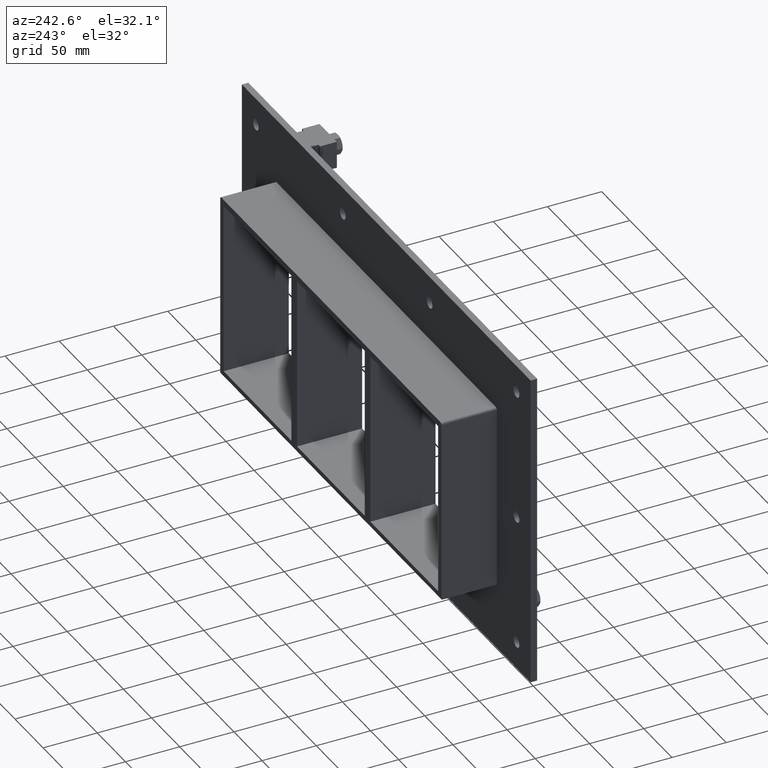
[diagram: clean part render]
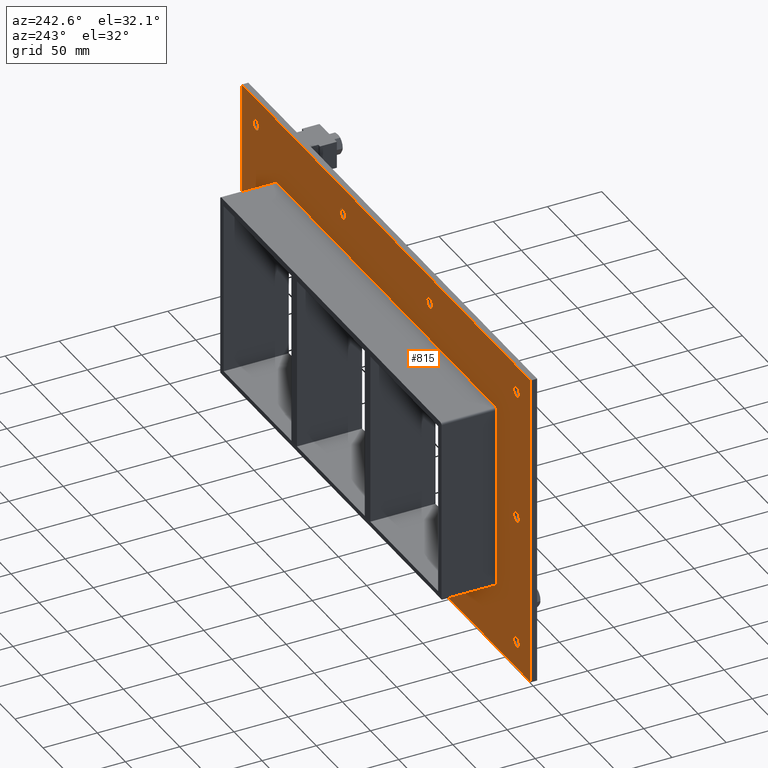
[diagram: same view with one face highlighted and labeled with its STEP entity id]
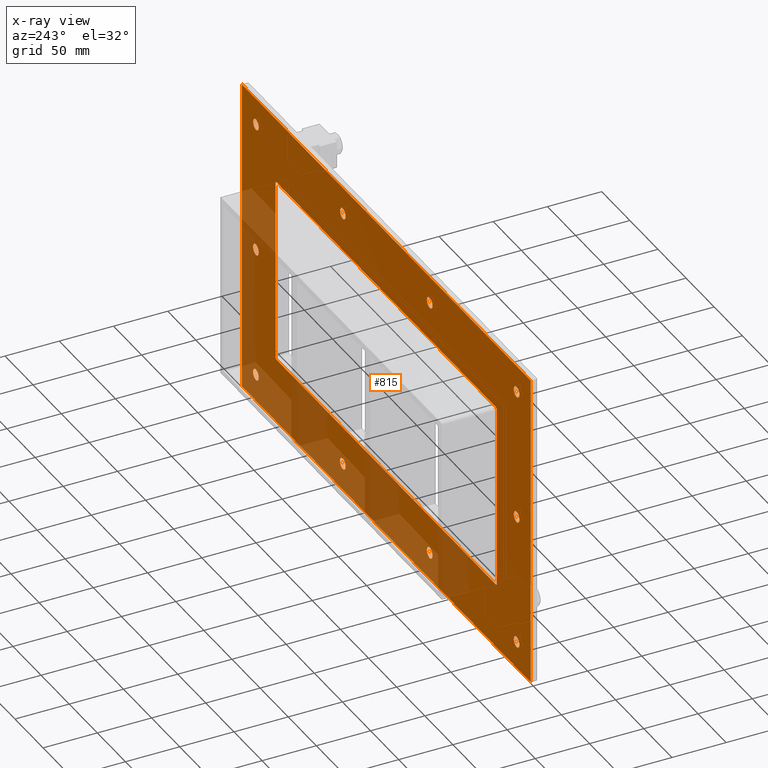
[diagram: x-ray of the same camera — body ghosted, the highlighted face saturated]
A machine part, auxiliary view. The second image highlights one B-rep face of the part: STEP entity #815.
The next image is the same camera in x-ray: the body ghosted, the highlighted face saturated — about 28% of this face is hidden behind the body in this view.
In plain terms, the highlighted planar face has unit normal (0, 1, 0).
Its self-contained STEP definition (entity closure, byte-faithful):
#73=CARTESIAN_POINT('',(-236.75000000000017,6.000000000000014,-120.74999999999996));
#74=VERTEX_POINT('',#73);
#75=CARTESIAN_POINT('',(-231.75000000000017,6.000000000000014,-120.74999999999996));
#76=DIRECTION('',(0.0,-1.0,0.0));
#77=DIRECTION('',(1.0,0.0,0.0));
#78=AXIS2_PLACEMENT_3D('',#75,#76,#77);
#79=CIRCLE('',#78,5.0);
#80=EDGE_CURVE('',#74,#74,#79,.T.);
#101=CARTESIAN_POINT('',(226.74999999999983,6.000000000000014,0.050000000000043));
#102=VERTEX_POINT('',#101);
#103=CARTESIAN_POINT('',(231.74999999999983,6.000000000000014,0.050000000000043));
#104=DIRECTION('',(0.0,-1.0,0.0));
#105=DIRECTION('',(1.0,0.0,0.0));
#106=AXIS2_PLACEMENT_3D('',#103,#104,#105);
#107=CIRCLE('',#106,5.0);
#108=EDGE_CURVE('',#102,#102,#107,.T.);
#129=CARTESIAN_POINT('',(-236.75000000000017,6.000000000000014,0.050000000000043));
#130=VERTEX_POINT('',#129);
#131=CARTESIAN_POINT('',(-231.75000000000017,6.000000000000014,0.050000000000043));
#132=DIRECTION('',(0.0,-1.0,0.0));
#133=DIRECTION('',(1.0,0.0,0.0));
#134=AXIS2_PLACEMENT_3D('',#131,#132,#133);
#135=CIRCLE('',#134,5.0);
#136=EDGE_CURVE('',#130,#130,#135,.T.);
#157=CARTESIAN_POINT('',(-82.250000000000199,6.000000000000014,120.85000000000005));
#158=VERTEX_POINT('',#157);
#159=CARTESIAN_POINT('',(-77.250000000000199,6.000000000000014,120.85000000000005));
#160=DIRECTION('',(0.0,-1.0,0.0));
#161=DIRECTION('',(1.0,0.0,0.0));
#162=AXIS2_PLACEMENT_3D('',#159,#160,#161);
#163=CIRCLE('',#162,5.0);
#164=EDGE_CURVE('',#158,#158,#163,.T.);
#185=CARTESIAN_POINT('',(-82.250000000000199,6.000000000000014,-120.74999999999996));
#186=VERTEX_POINT('',#185);
#187=CARTESIAN_POINT('',(-77.250000000000199,6.000000000000014,-120.74999999999996));
#188=DIRECTION('',(0.0,-1.0,0.0));
#189=DIRECTION('',(1.0,0.0,0.0));
#190=AXIS2_PLACEMENT_3D('',#187,#188,#189);
#191=CIRCLE('',#190,5.0);
#192=EDGE_CURVE('',#186,#186,#191,.T.);
#213=CARTESIAN_POINT('',(72.249999999999815,6.000000000000014,120.85000000000005));
#214=VERTEX_POINT('',#213);
#215=CARTESIAN_POINT('',(77.249999999999815,6.000000000000014,120.85000000000005));
#216=DIRECTION('',(0.0,-1.0,0.0));
#217=DIRECTION('',(1.0,0.0,0.0));
#218=AXIS2_PLACEMENT_3D('',#215,#216,#217);
#219=CIRCLE('',#218,5.0);
#220=EDGE_CURVE('',#214,#214,#219,.T.);
#241=CARTESIAN_POINT('',(72.249999999999815,6.000000000000014,-120.74999999999996));
#242=VERTEX_POINT('',#241);
#243=CARTESIAN_POINT('',(77.249999999999815,6.000000000000014,-120.74999999999996));
#244=DIRECTION('',(0.0,-1.0,0.0));
#245=DIRECTION('',(1.0,0.0,0.0));
#246=AXIS2_PLACEMENT_3D('',#243,#244,#245);
#247=CIRCLE('',#246,5.0);
#248=EDGE_CURVE('',#242,#242,#247,.T.);
#269=CARTESIAN_POINT('',(226.74999999999983,6.000000000000014,-120.74999999999996));
#270=VERTEX_POINT('',#269);
#271=CARTESIAN_POINT('',(231.74999999999983,6.000000000000014,-120.74999999999996));
#272=DIRECTION('',(0.0,-1.0,0.0));
#273=DIRECTION('',(1.0,0.0,0.0));
#274=AXIS2_PLACEMENT_3D('',#271,#272,#273);
#275=CIRCLE('',#274,5.0);
#276=EDGE_CURVE('',#270,#270,#275,.T.);
#297=CARTESIAN_POINT('',(-236.75000000000017,6.000000000000014,120.85000000000005));
#298=VERTEX_POINT('',#297);
#299=CARTESIAN_POINT('',(-231.75000000000017,6.000000000000014,120.85000000000005));
#300=DIRECTION('',(0.0,-1.0,0.0));
#301=DIRECTION('',(1.0,0.0,0.0));
#302=AXIS2_PLACEMENT_3D('',#299,#300,#301);
#303=CIRCLE('',#302,5.0);
#304=EDGE_CURVE('',#298,#298,#303,.T.);
#325=CARTESIAN_POINT('',(226.74999999999983,6.000000000000014,120.85000000000005));
#326=VERTEX_POINT('',#325);
#327=CARTESIAN_POINT('',(231.74999999999983,6.000000000000014,120.85000000000005));
#328=DIRECTION('',(0.0,-1.0,0.0));
#329=DIRECTION('',(1.0,0.0,0.0));
#330=AXIS2_PLACEMENT_3D('',#327,#328,#329);
#331=CIRCLE('',#330,5.0);
#332=EDGE_CURVE('',#326,#326,#331,.T.);
#676=CARTESIAN_POINT('',(0.0,6.000000000000001,1.059194E-014));
#677=DIRECTION('',(0.0,1.0,0.0));
#678=DIRECTION('',(0.0,0.0,1.0));
#679=AXIS2_PLACEMENT_3D('',#676,#677,#678);
#680=PLANE('',#679);
#681=CARTESIAN_POINT('',(-256.75000000000006,6.000000000000001,145.74999999999997));
#682=VERTEX_POINT('',#681);
#683=CARTESIAN_POINT('',(256.75000000000006,6.000000000000001,145.74999999999997));
#684=VERTEX_POINT('',#683);
#685=CARTESIAN_POINT('',(-256.75000000000006,6.000000000000001,145.74999999999997));
#686=DIRECTION('',(1.0,0.0,0.0));
#687=VECTOR('',#686,513.50000000000011);
#688=LINE('',#685,#687);
#689=EDGE_CURVE('',#682,#684,#688,.T.);
#690=ORIENTED_EDGE('',*,*,#689,.T.);
#691=CARTESIAN_POINT('',(256.75000000000006,6.000000000000001,-145.74999999999994));
#692=VERTEX_POINT('',#691);
#693=CARTESIAN_POINT('',(256.75000000000006,6.000000000000001,145.74999999999997));
#694=DIRECTION('',(0.0,0.0,-1.0));
#695=VECTOR('',#694,291.49999999999989);
#696=LINE('',#693,#695);
#697=EDGE_CURVE('',#684,#692,#696,.T.);
#698=ORIENTED_EDGE('',*,*,#697,.T.);
#699=CARTESIAN_POINT('',(-256.75000000000006,6.000000000000001,-145.74999999999994));
#700=VERTEX_POINT('',#699);
#701=CARTESIAN_POINT('',(256.75000000000006,6.000000000000001,-145.74999999999994));
#702=DIRECTION('',(-1.0,0.0,0.0));
#703=VECTOR('',#702,513.50000000000011);
#704=LINE('',#701,#703);
#705=EDGE_CURVE('',#692,#700,#704,.T.);
#706=ORIENTED_EDGE('',*,*,#705,.T.);
#707=CARTESIAN_POINT('',(-256.75000000000006,6.000000000000001,-145.74999999999994));
#708=DIRECTION('',(0.0,0.0,1.0));
#709=VECTOR('',#708,291.49999999999989);
#710=LINE('',#707,#709);
#711=EDGE_CURVE('',#700,#682,#710,.T.);
#712=ORIENTED_EDGE('',*,*,#711,.T.);
#713=EDGE_LOOP('',(#690,#698,#706,#712));
#714=FACE_OUTER_BOUND('',#713,.T.);
#715=ORIENTED_EDGE('',*,*,#80,.T.);
#716=EDGE_LOOP('',(#715));
#717=FACE_BOUND('',#716,.T.);
#718=ORIENTED_EDGE('',*,*,#108,.T.);
#719=EDGE_LOOP('',(#718));
#720=FACE_BOUND('',#719,.T.);
#721=ORIENTED_EDGE('',*,*,#136,.T.);
#722=EDGE_LOOP('',(#721));
#723=FACE_BOUND('',#722,.T.);
#724=ORIENTED_EDGE('',*,*,#164,.T.);
#725=EDGE_LOOP('',(#724));
#726=FACE_BOUND('',#725,.T.);
#727=ORIENTED_EDGE('',*,*,#192,.T.);
#728=EDGE_LOOP('',(#727));
#729=FACE_BOUND('',#728,.T.);
#730=ORIENTED_EDGE('',*,*,#220,.T.);
#731=EDGE_LOOP('',(#730));
#732=FACE_BOUND('',#731,.T.);
#733=ORIENTED_EDGE('',*,*,#248,.T.);
#734=EDGE_LOOP('',(#733));
#735=FACE_BOUND('',#734,.T.);
#736=ORIENTED_EDGE('',*,*,#276,.T.);
#737=EDGE_LOOP('',(#736));
#738=FACE_BOUND('',#737,.T.);
#739=ORIENTED_EDGE('',*,*,#304,.T.);
#740=EDGE_LOOP('',(#739));
#741=FACE_BOUND('',#740,.T.);
#742=ORIENTED_EDGE('',*,*,#332,.T.);
#743=EDGE_LOOP('',(#742));
#744=FACE_BOUND('',#743,.T.);
#745=CARTESIAN_POINT('',(-196.75000000000009,6.000000000000001,83.750000000000028));
#746=VERTEX_POINT('',#745);
#747=CARTESIAN_POINT('',(-194.75000000000009,6.000000000000001,85.750000000000028));
#748=VERTEX_POINT('',#747);
#749=CARTESIAN_POINT('',(-194.75000000000009,6.000000000000001,83.750000000000028));
#750=DIRECTION('',(0.0,1.0,0.0));
#751=DIRECTION('',(-0.707106781186554,0.0,0.707106781186541));
#752=AXIS2_PLACEMENT_3D('',#749,#750,#751);
#753=CIRCLE('',#752,2.0);
#754=EDGE_CURVE('',#746,#748,#753,.T.);
#755=ORIENTED_EDGE('',*,*,#754,.F.);
#756=CARTESIAN_POINT('',(-196.75000000000009,6.000000000000001,-83.750000000000028));
#757=VERTEX_POINT('',#756);
#758=CARTESIAN_POINT('',(-196.75000000000009,6.000000000000001,-83.750000000000028));
#759=DIRECTION('',(0.0,0.0,1.0));
#760=VECTOR('',#759,167.50000000000009);
#761=LINE('',#758,#760);
#762=EDGE_CURVE('',#757,#746,#761,.T.);
#763=ORIENTED_EDGE('',*,*,#762,.F.);
#764=CARTESIAN_POINT('',(-194.75000000000009,6.000000000000001,-85.750000000000028));
#765=VERTEX_POINT('',#764);
#766=CARTESIAN_POINT('',(-194.75000000000009,6.000000000000001,-83.750000000000028));
#767=DIRECTION('',(0.0,1.0,0.0));
#768=DIRECTION('',(-0.707106781186554,0.0,-0.707106781186541));
#769=AXIS2_PLACEMENT_3D('',#766,#767,#768);
#770=CIRCLE('',#769,2.0);
#771=EDGE_CURVE('',#765,#757,#770,.T.);
#772=ORIENTED_EDGE('',*,*,#771,.F.);
#773=CARTESIAN_POINT('',(194.75,6.000000000000001,-85.750000000000028));
#774=VERTEX_POINT('',#773);
#775=CARTESIAN_POINT('',(194.75,6.000000000000001,-85.750000000000028));
#776=DIRECTION('',(-1.0,0.0,0.0));
#777=VECTOR('',#776,389.50000000000006);
#778=LINE('',#775,#777);
#779=EDGE_CURVE('',#774,#765,#778,.T.);
#780=ORIENTED_EDGE('',*,*,#779,.F.);
#781=CARTESIAN_POINT('',(196.75,6.000000000000001,-83.750000000000028));
#782=VERTEX_POINT('',#781);
#783=CARTESIAN_POINT('',(194.75,6.000000000000001,-83.750000000000028));
#784=DIRECTION('',(0.0,1.0,0.0));
#785=DIRECTION('',(0.707106781186554,0.0,-0.707106781186541));
#786=AXIS2_PLACEMENT_3D('',#783,#784,#785);
#787=CIRCLE('',#786,2.0);
#788=EDGE_CURVE('',#782,#774,#787,.T.);
#789=ORIENTED_EDGE('',*,*,#788,.F.);
#790=CARTESIAN_POINT('',(196.75,6.000000000000001,83.750000000000028));
#791=VERTEX_POINT('',#790);
#792=CARTESIAN_POINT('',(196.75,6.000000000000001,83.750000000000028));
#793=DIRECTION('',(0.0,0.0,-1.0));
#794=VECTOR('',#793,167.50000000000006);
#795=LINE('',#792,#794);
#796=EDGE_CURVE('',#791,#782,#795,.T.);
#797=ORIENTED_EDGE('',*,*,#796,.F.);
#798=CARTESIAN_POINT('',(194.75,6.000000000000001,85.750000000000028));
#799=VERTEX_POINT('',#798);
#800=CARTESIAN_POINT('',(194.75,6.000000000000001,83.750000000000028));
#801=DIRECTION('',(0.0,1.0,0.0));
#802=DIRECTION('',(0.707106781186554,0.0,0.707106781186541));
#803=AXIS2_PLACEMENT_3D('',#800,#801,#802);
#804=CIRCLE('',#803,2.0);
#805=EDGE_CURVE('',#799,#791,#804,.T.);
#806=ORIENTED_EDGE('',*,*,#805,.F.);
#807=CARTESIAN_POINT('',(-194.75000000000009,6.000000000000001,85.750000000000028));
#808=DIRECTION('',(1.0,0.0,0.0));
#809=VECTOR('',#808,389.50000000000011);
#810=LINE('',#807,#809);
#811=EDGE_CURVE('',#748,#799,#810,.T.);
#812=ORIENTED_EDGE('',*,*,#811,.F.);
#813=EDGE_LOOP('',(#755,#763,#772,#780,#789,#797,#806,#812));
#814=FACE_BOUND('',#813,.T.);
#815=ADVANCED_FACE('',(#714,#717,#720,#723,#726,#729,#732,#735,#738,#741,#744,#814),#680,.T.);